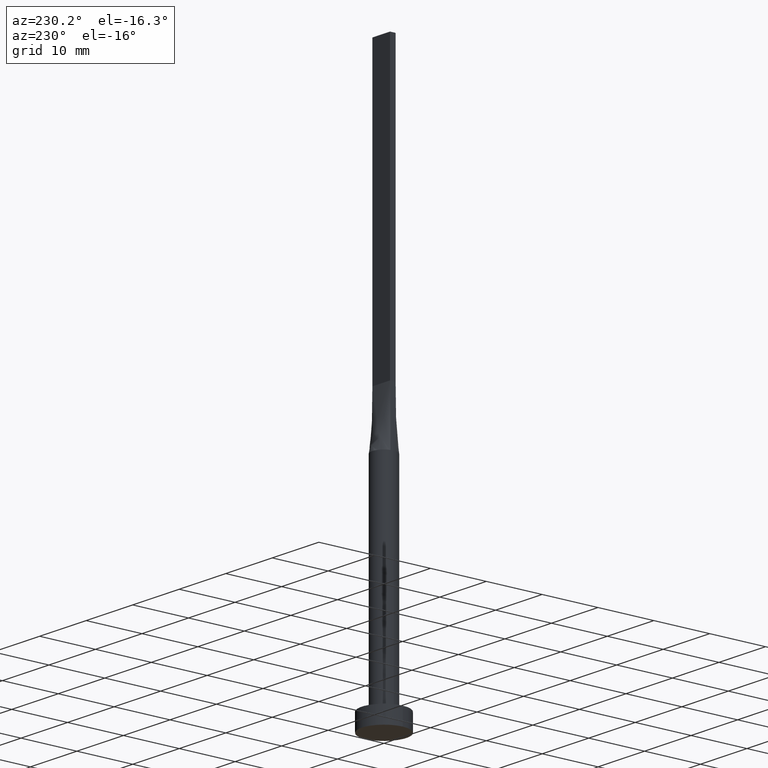
[diagram: clean part render]
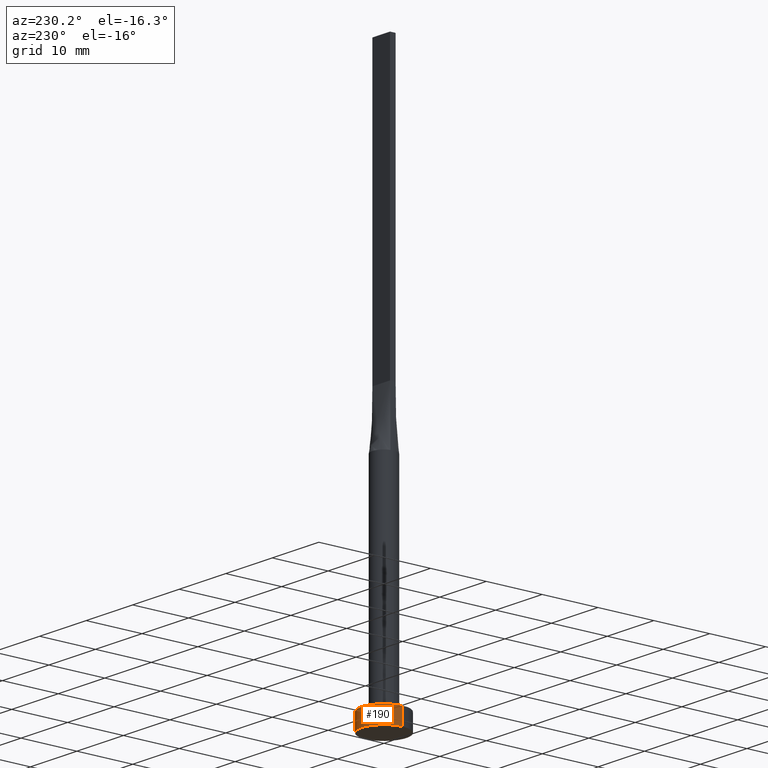
[diagram: same view with one face highlighted and labeled with its STEP entity id]
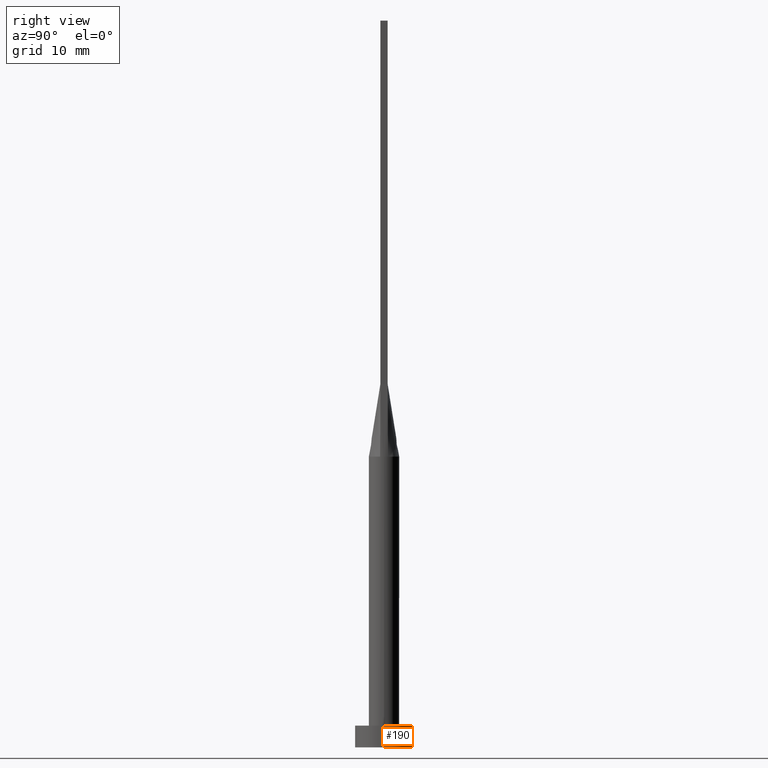
[diagram: same view with one face highlighted and labeled with its STEP entity id]
A machine part, auxiliary view. The second image highlights one B-rep face of the part: STEP entity #190.
A second angle (right view) of the same face is appended — the face is thin or edge-on in the first view.
In plain terms, the highlighted cylindrical surface (edge-blend (fillet) strip) has radius 4 mm, axis along (-0, -0, -1).
Its self-contained STEP definition (entity closure, byte-faithful):
#1 = LINE ( 'NONE', #304, #254 ) ;
#8 = EDGE_CURVE ( 'NONE', #329, #137, #158, .T. ) ;
#35 = FACE_OUTER_BOUND ( 'NONE', #128, .T. ) ;
#62 = ORIENTED_EDGE ( 'NONE', *, *, #101, .T. ) ;
#94 = ORIENTED_EDGE ( 'NONE', *, *, #270, .T. ) ;
#101 = EDGE_CURVE ( 'NONE', #173, #297, #112, .T. ) ;
#112 = CIRCLE ( 'NONE', #457, 4.000000000000000000 ) ;
#128 = EDGE_LOOP ( 'NONE', ( #258, #94, #62, #168 ) ) ;
#137 = VERTEX_POINT ( 'NONE', #248 ) ;
#155 = CARTESIAN_POINT ( 'NONE',  ( 4.000000000000000000, 4.898587196589412829E-16, 3.000000000000000000 ) ) ;
#158 = CIRCLE ( 'NONE', #240, 4.000000000000000000 ) ;
#165 = LINE ( 'NONE', #219, #425 ) ;
#168 = ORIENTED_EDGE ( 'NONE', *, *, #224, .F. ) ;
#173 = VERTEX_POINT ( 'NONE', #296 ) ;
#175 = CARTESIAN_POINT ( 'NONE',  ( 0.000000000000000000, 0.000000000000000000, 3.000000000000000000 ) ) ;
#184 = CARTESIAN_POINT ( 'NONE',  ( 0.000000000000000000, 0.000000000000000000, 3.000000000000000000 ) ) ;
#190 = ADVANCED_FACE ( 'NONE', ( #35 ), #301, .T. ) ;
#219 = CARTESIAN_POINT ( 'NONE',  ( -4.000000000000000000, 0.000000000000000000, 3.000000000000000000 ) ) ;
#224 = EDGE_CURVE ( 'NONE', #137, #297, #165, .T. ) ;
#226 = DIRECTION ( 'NONE',  ( -0.000000000000000000, -0.000000000000000000, -1.000000000000000000 ) ) ;
#231 = CARTESIAN_POINT ( 'NONE',  ( -4.000000000000000000, 0.000000000000000000, 0.000000000000000000 ) ) ;
#240 = AXIS2_PLACEMENT_3D ( 'NONE', #184, #509, #553 ) ;
#248 = CARTESIAN_POINT ( 'NONE',  ( -4.000000000000000000, 0.000000000000000000, 3.000000000000000000 ) ) ;
#254 = VECTOR ( 'NONE', #538, 1000.000000000000000 ) ;
#258 = ORIENTED_EDGE ( 'NONE', *, *, #8, .F. ) ;
#270 = EDGE_CURVE ( 'NONE', #329, #173, #1, .T. ) ;
#282 = DIRECTION ( 'NONE',  ( 1.000000000000000000, 0.000000000000000000, 0.000000000000000000 ) ) ;
#296 = CARTESIAN_POINT ( 'NONE',  ( 4.000000000000000000, 4.898587196589412829E-16, 0.000000000000000000 ) ) ;
#297 = VERTEX_POINT ( 'NONE', #231 ) ;
#301 = CYLINDRICAL_SURFACE ( 'NONE', #370, 4.000000000000000000 ) ;
#304 = CARTESIAN_POINT ( 'NONE',  ( 4.000000000000000000, 4.898587196589412829E-16, 3.000000000000000000 ) ) ;
#329 = VERTEX_POINT ( 'NONE', #155 ) ;
#370 = AXIS2_PLACEMENT_3D ( 'NONE', #175, #226, #542 ) ;
#425 = VECTOR ( 'NONE', #579, 1000.000000000000000 ) ;
#427 = CARTESIAN_POINT ( 'NONE',  ( 0.000000000000000000, 0.000000000000000000, 0.000000000000000000 ) ) ;
#457 = AXIS2_PLACEMENT_3D ( 'NONE', #427, #474, #282 ) ;
#474 = DIRECTION ( 'NONE',  ( 0.000000000000000000, 0.000000000000000000, 1.000000000000000000 ) ) ;
#509 = DIRECTION ( 'NONE',  ( 0.000000000000000000, 0.000000000000000000, 1.000000000000000000 ) ) ;
#538 = DIRECTION ( 'NONE',  ( -0.000000000000000000, -0.000000000000000000, -1.000000000000000000 ) ) ;
#542 = DIRECTION ( 'NONE',  ( -1.000000000000000000, 0.000000000000000000, 0.000000000000000000 ) ) ;
#553 = DIRECTION ( 'NONE',  ( 1.000000000000000000, 0.000000000000000000, 0.000000000000000000 ) ) ;
#579 = DIRECTION ( 'NONE',  ( -0.000000000000000000, -0.000000000000000000, -1.000000000000000000 ) ) ;